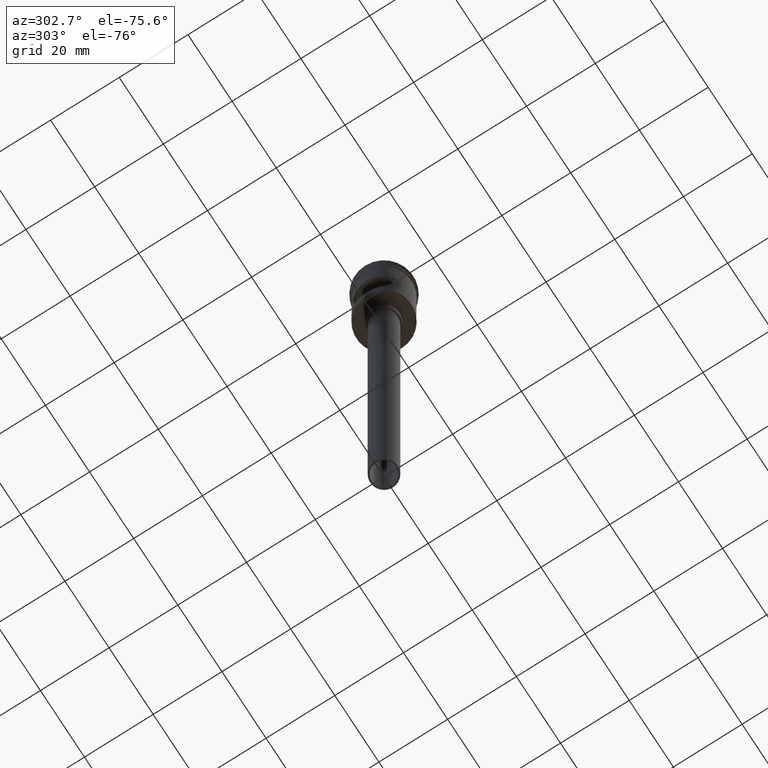
[diagram: clean part render]
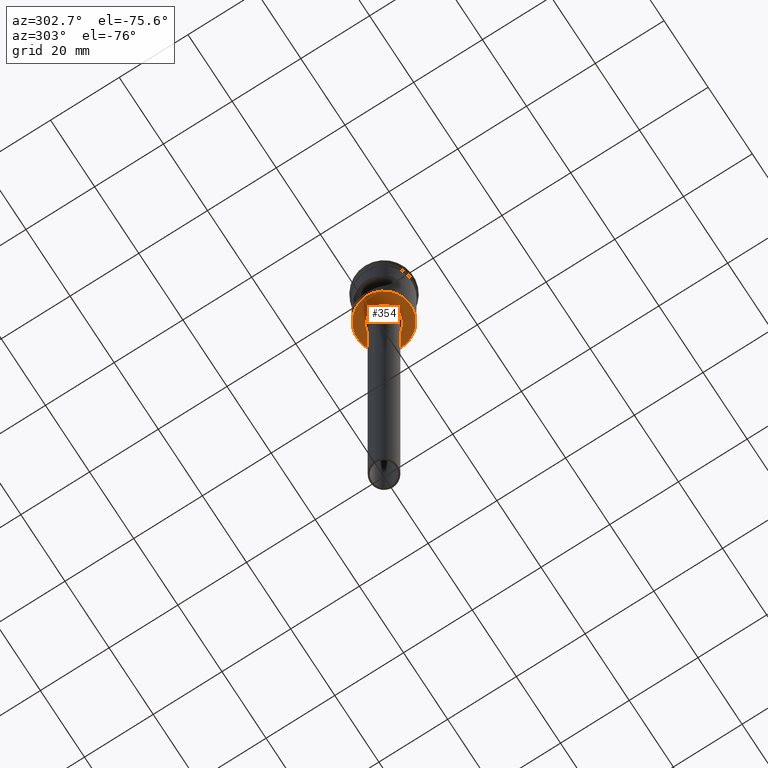
[diagram: same view with one face highlighted and labeled with its STEP entity id]
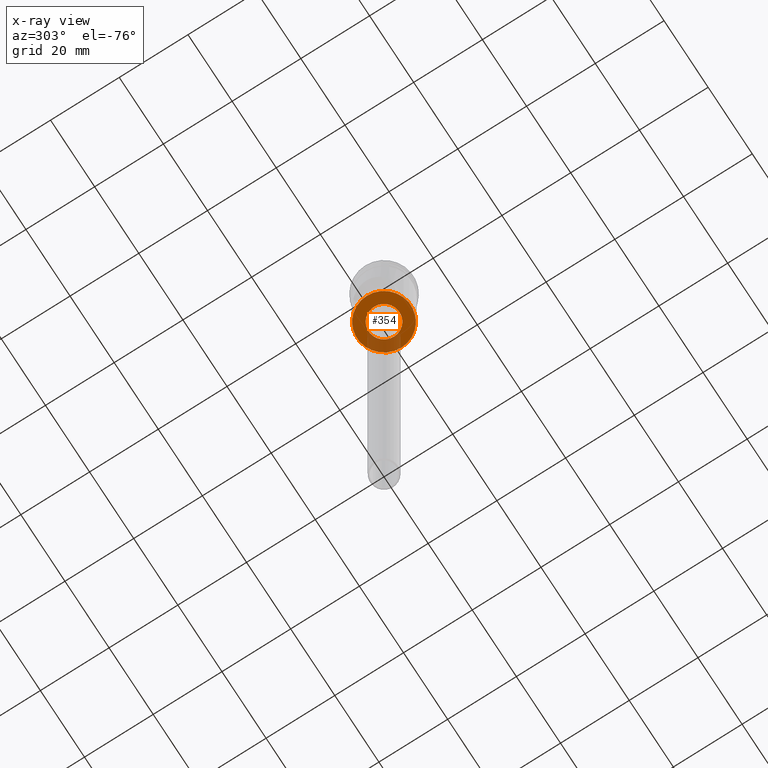
[diagram: x-ray of the same camera — body ghosted, the highlighted face saturated]
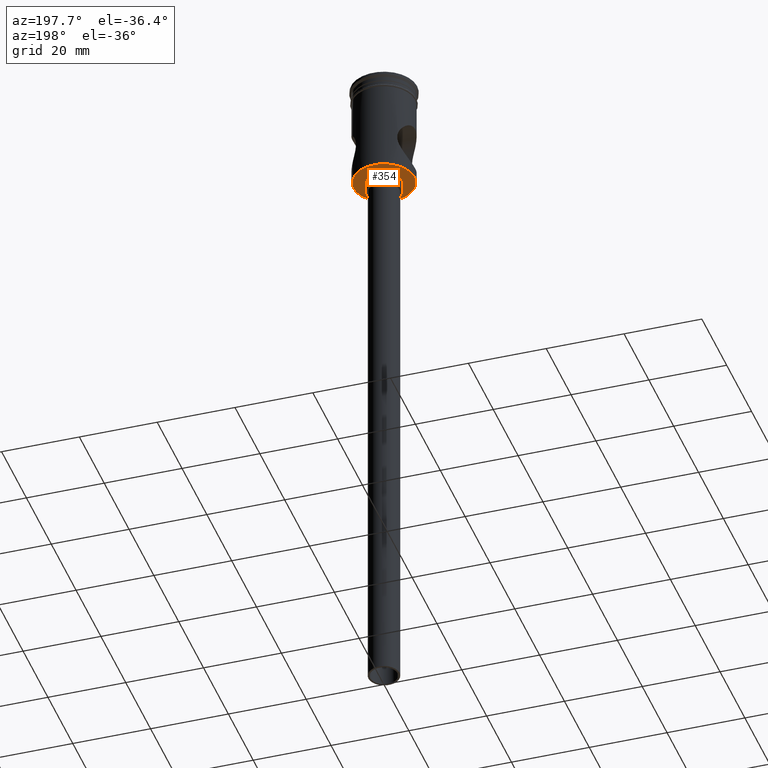
[diagram: same view with one face highlighted and labeled with its STEP entity id]
A machine part, auxiliary view. The second image highlights one B-rep face of the part: STEP entity #354.
The next image is the same camera in x-ray: the body ghosted, the highlighted face saturated — about 23% of this face is hidden behind the body in this view.
A second angle (auxiliary view) of the same face is appended — the face is thin or edge-on in the first view.
In plain terms, the highlighted planar face has unit normal (0, 0, -1).
Its self-contained STEP definition (entity closure, byte-faithful):
#6 = EDGE_LOOP ( 'NONE', ( #333, #628 ) ) ;
#109 = AXIS2_PLACEMENT_3D ( 'NONE', #513, #871, #1360 ) ;
#178 = CARTESIAN_POINT ( 'NONE',  ( -4.500000000000000000, 5.510910596163088569E-16, -27.50000000000000000 ) ) ;
#181 = VERTEX_POINT ( 'NONE', #178 ) ;
#220 = CARTESIAN_POINT ( 'NONE',  ( 0.000000000000000000, 0.000000000000000000, -27.50000000000000000 ) ) ;
#240 = PLANE ( 'NONE',  #682 ) ;
#270 = ORIENTED_EDGE ( 'NONE', *, *, #510, .T. ) ;
#277 = DIRECTION ( 'NONE',  ( 0.000000000000000000, 0.000000000000000000, -1.000000000000000000 ) ) ;
#307 = DIRECTION ( 'NONE',  ( -1.000000000000000000, 0.000000000000000000, 0.000000000000000000 ) ) ;
#333 = ORIENTED_EDGE ( 'NONE', *, *, #984, .F. ) ;
#336 = DIRECTION ( 'NONE',  ( -1.000000000000000000, 0.000000000000000000, -0.000000000000000000 ) ) ;
#354 = ADVANCED_FACE ( 'NONE', ( #1325, #972 ), #240, .T. ) ;
#359 = VERTEX_POINT ( 'NONE', #1185 ) ;
#510 = EDGE_CURVE ( 'NONE', #359, #864, #618, .T. ) ;
#513 = CARTESIAN_POINT ( 'NONE',  ( 0.000000000000000000, 0.000000000000000000, -27.50000000000000000 ) ) ;
#593 = CIRCLE ( 'NONE', #661, 7.799999999999987388 ) ;
#617 = EDGE_CURVE ( 'NONE', #864, #359, #593, .T. ) ;
#618 = CIRCLE ( 'NONE', #109, 7.799999999999987388 ) ;
#628 = ORIENTED_EDGE ( 'NONE', *, *, #634, .F. ) ;
#634 = EDGE_CURVE ( 'NONE', #181, #1389, #804, .T. ) ;
#661 = AXIS2_PLACEMENT_3D ( 'NONE', #1337, #1227, #1466 ) ;
#682 = AXIS2_PLACEMENT_3D ( 'NONE', #1293, #1087, #336 ) ;
#804 = CIRCLE ( 'NONE', #1100, 4.500000000000000000 ) ;
#864 = VERTEX_POINT ( 'NONE', #1001 ) ;
#871 = DIRECTION ( 'NONE',  ( 0.000000000000000000, 0.000000000000000000, -1.000000000000000000 ) ) ;
#875 = CARTESIAN_POINT ( 'NONE',  ( 4.500000000000000000, 0.000000000000000000, -27.50000000000000000 ) ) ;
#961 = DIRECTION ( 'NONE',  ( -1.000000000000000000, 0.000000000000000000, 0.000000000000000000 ) ) ;
#972 = FACE_BOUND ( 'NONE', #6, .T. ) ;
#984 = EDGE_CURVE ( 'NONE', #1389, #181, #1490, .T. ) ;
#989 = CARTESIAN_POINT ( 'NONE',  ( 0.000000000000000000, 0.000000000000000000, -27.50000000000000000 ) ) ;
#1001 = CARTESIAN_POINT ( 'NONE',  ( -7.799999999999987388, 9.674709713264080254E-16, -27.50000000000000000 ) ) ;
#1037 = DIRECTION ( 'NONE',  ( 0.000000000000000000, 0.000000000000000000, -1.000000000000000000 ) ) ;
#1087 = DIRECTION ( 'NONE',  ( 0.000000000000000000, 0.000000000000000000, -1.000000000000000000 ) ) ;
#1098 = ORIENTED_EDGE ( 'NONE', *, *, #617, .T. ) ;
#1100 = AXIS2_PLACEMENT_3D ( 'NONE', #989, #277, #961 ) ;
#1170 = AXIS2_PLACEMENT_3D ( 'NONE', #220, #1037, #307 ) ;
#1185 = CARTESIAN_POINT ( 'NONE',  ( 7.799999999999987388, 0.000000000000000000, -27.50000000000000000 ) ) ;
#1227 = DIRECTION ( 'NONE',  ( 0.000000000000000000, 0.000000000000000000, -1.000000000000000000 ) ) ;
#1293 = CARTESIAN_POINT ( 'NONE',  ( 0.000000000000000000, 7.999999999999992895, -27.50000000000000000 ) ) ;
#1325 = FACE_OUTER_BOUND ( 'NONE', #1501, .T. ) ;
#1337 = CARTESIAN_POINT ( 'NONE',  ( 0.000000000000000000, 0.000000000000000000, -27.50000000000000000 ) ) ;
#1360 = DIRECTION ( 'NONE',  ( -1.000000000000000000, 0.000000000000000000, 0.000000000000000000 ) ) ;
#1389 = VERTEX_POINT ( 'NONE', #875 ) ;
#1466 = DIRECTION ( 'NONE',  ( -1.000000000000000000, 0.000000000000000000, 0.000000000000000000 ) ) ;
#1490 = CIRCLE ( 'NONE', #1170, 4.500000000000000000 ) ;
#1501 = EDGE_LOOP ( 'NONE', ( #270, #1098 ) ) ;